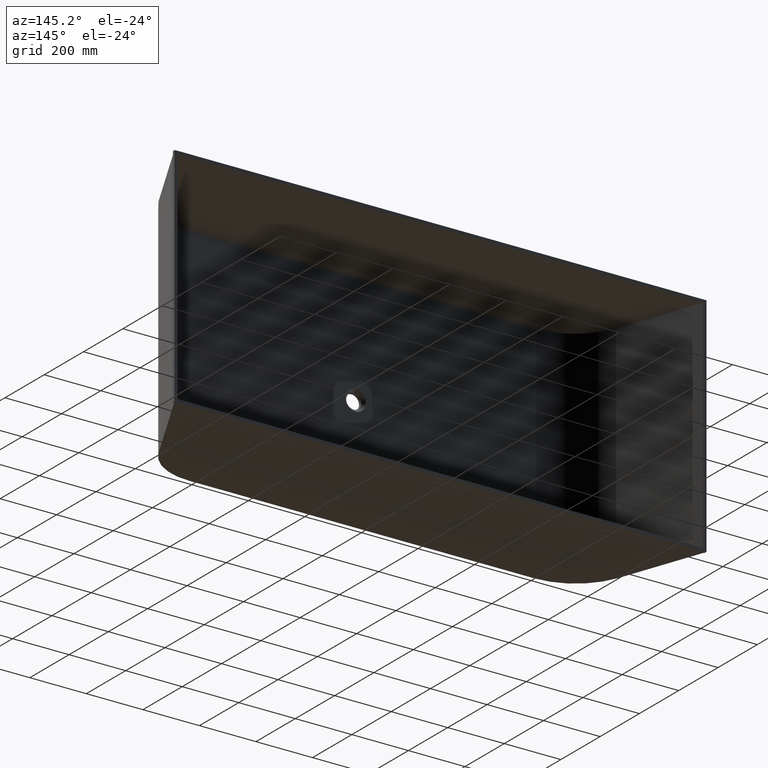
[diagram: clean part render]
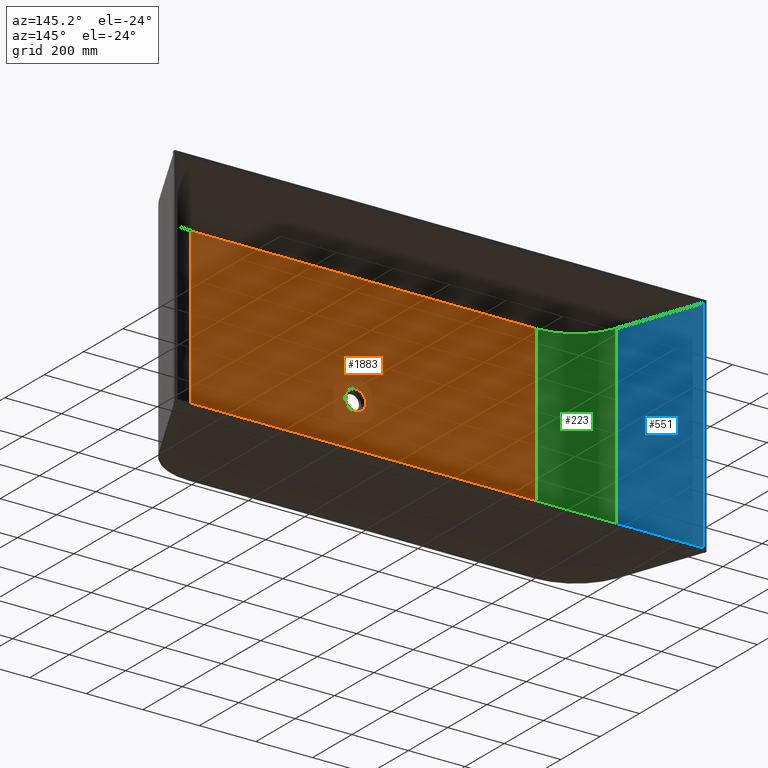
[diagram: same view with three faces highlighted in distinct colors, each labeled with its STEP entity id]
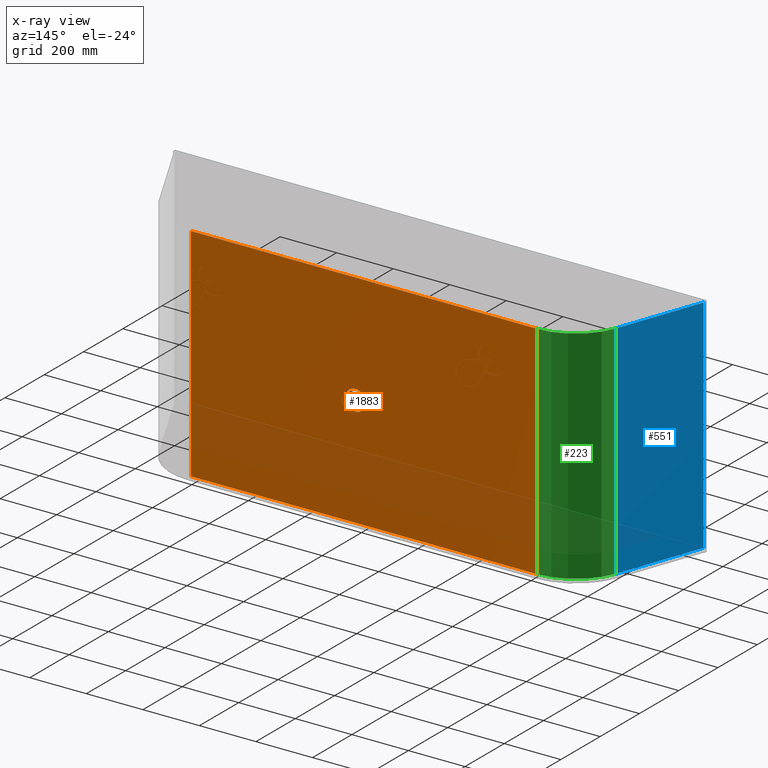
[diagram: x-ray of the same camera — body ghosted, the three highlighted faces saturated]
A machine part, auxiliary view with three faces highlighted in distinct colors.
The next image is the same camera in x-ray (body ghosted, the three faces saturated) — at least one of them is partly hidden behind the body in this view.
Their STEP definitions:

[orange] entity #1883 — the highlighted planar face has unit normal (-0, 1, 0).
#12 = VECTOR ( 'NONE', #1101, 1000.000000000000000 ) ;
#79 = DIRECTION ( 'NONE',  ( -9.086232305730578689E-17, 1.000000000000000000, 0.0000000000000000000 ) ) ;
#112 = EDGE_CURVE ( 'NONE', #615, #1633, #811, .T. ) ;
#124 = VECTOR ( 'NONE', #2161, 1000.000000000000000 ) ;
#141 = VECTOR ( 'NONE', #571, 1000.000000000000000 ) ;
#162 = CARTESIAN_POINT ( 'NONE',  ( -639.9479528049172359, -430.0000000000000568, -390.0000000000000000 ) ) ;
#197 = CIRCLE ( 'NONE', #491, 36.00000000000025580 ) ;
#214 = EDGE_CURVE ( 'NONE', #1102, #1333, #197, .T. ) ;
#244 = FACE_OUTER_BOUND ( 'NONE', #328, .T. ) ;
#285 = DIRECTION ( 'NONE',  ( -9.086232305730578689E-17, 1.000000000000000000, 0.0000000000000000000 ) ) ;
#293 = DIRECTION ( 'NONE',  ( -0.0000000000000000000, -0.0000000000000000000, -1.000000000000000000 ) ) ;
#304 = CARTESIAN_POINT ( 'NONE',  ( -639.9479528049172359, -430.0000000000000568, 390.0000000000000000 ) ) ;
#323 = CIRCLE ( 'NONE', #1554, 36.00000000000025580 ) ;
#328 = EDGE_LOOP ( 'NONE', ( #1763, #1619, #606, #472 ) ) ;
#367 = DIRECTION ( 'NONE',  ( -1.000000000000000000, 0.0000000000000000000, 0.0000000000000000000 ) ) ;
#417 = CARTESIAN_POINT ( 'NONE',  ( 3.907079891464148792E-14, -430.0000000000000000, 390.0000000000000000 ) ) ;
#472 = ORIENTED_EDGE ( 'NONE', *, *, #112, .T. ) ;
#491 = AXIS2_PLACEMENT_3D ( 'NONE', #1938, #285, #1959 ) ;
#524 = EDGE_LOOP ( 'NONE', ( #1074, #937 ) ) ;
#530 = EDGE_CURVE ( 'NONE', #1333, #1102, #323, .T. ) ;
#571 = DIRECTION ( 'NONE',  ( 1.000000000000000000, 9.086232305730578689E-17, 0.0000000000000000000 ) ) ;
#598 = VERTEX_POINT ( 'NONE', #162 ) ;
#606 = ORIENTED_EDGE ( 'NONE', *, *, #1880, .T. ) ;
#615 = VERTEX_POINT ( 'NONE', #1182 ) ;
#734 = CARTESIAN_POINT ( 'NONE',  ( 3.907079891464148792E-14, -430.0000000000000000, -390.0000000000000000 ) ) ;
#768 = DIRECTION ( 'NONE',  ( -1.000000000000000000, -9.086232305730578689E-17, 0.0000000000000000000 ) ) ;
#777 = EDGE_CURVE ( 'NONE', #598, #1633, #2082, .T. ) ;
#811 = LINE ( 'NONE', #1321, #124 ) ;
#855 = DIRECTION ( 'NONE',  ( -9.086232305730578689E-17, 1.000000000000000000, 0.0000000000000000000 ) ) ;
#930 = PLANE ( 'NONE',  #1259 ) ;
#937 = ORIENTED_EDGE ( 'NONE', *, *, #214, .F. ) ;
#1007 = VECTOR ( 'NONE', #293, 1000.000000000000000 ) ;
#1074 = ORIENTED_EDGE ( 'NONE', *, *, #530, .F. ) ;
#1101 = DIRECTION ( 'NONE',  ( 1.000000000000000000, 9.086232305730578689E-17, 0.0000000000000000000 ) ) ;
#1102 = VERTEX_POINT ( 'NONE', #1514 ) ;
#1142 = LINE ( 'NONE', #1802, #1007 ) ;
#1182 = CARTESIAN_POINT ( 'NONE',  ( 581.9259628828339146, -429.9999999999999432, 390.0000000000000000 ) ) ;
#1259 = AXIS2_PLACEMENT_3D ( 'NONE', #1600, #79, #768 ) ;
#1321 = CARTESIAN_POINT ( 'NONE',  ( 581.9259628828339146, -429.9999999999999432, 390.0000000000000000 ) ) ;
#1333 = VERTEX_POINT ( 'NONE', #1431 ) ;
#1431 = CARTESIAN_POINT ( 'NONE',  ( 3.907079891464148792E-14, -430.0000000000000000, 36.00000000000025580 ) ) ;
#1462 = VERTEX_POINT ( 'NONE', #304 ) ;
#1514 = CARTESIAN_POINT ( 'NONE',  ( 4.347952739157198481E-14, -430.0000000000000000, -36.00000000000025580 ) ) ;
#1552 = EDGE_CURVE ( 'NONE', #1462, #598, #1142, .T. ) ;
#1554 = AXIS2_PLACEMENT_3D ( 'NONE', #1688, #855, #367 ) ;
#1600 = CARTESIAN_POINT ( 'NONE',  ( 3.907079891464148792E-14, -430.0000000000000000, 390.0000000000000000 ) ) ;
#1619 = ORIENTED_EDGE ( 'NONE', *, *, #1552, .F. ) ;
#1633 = VERTEX_POINT ( 'NONE', #2018 ) ;
#1688 = CARTESIAN_POINT ( 'NONE',  ( 3.907079891464148792E-14, -430.0000000000000000, 0.0000000000000000000 ) ) ;
#1760 = FACE_BOUND ( 'NONE', #524, .T. ) ;
#1763 = ORIENTED_EDGE ( 'NONE', *, *, #777, .F. ) ;
#1802 = CARTESIAN_POINT ( 'NONE',  ( -639.9479528049172359, -430.0000000000000568, 390.0000000000000000 ) ) ;
#1880 = EDGE_CURVE ( 'NONE', #1462, #615, #1936, .T. ) ;
#1883 = ADVANCED_FACE ( 'NONE', ( #1760, #244 ), #930, .T. ) ;
#1936 = LINE ( 'NONE', #417, #12 ) ;
#1938 = CARTESIAN_POINT ( 'NONE',  ( 3.907079891464148792E-14, -430.0000000000000000, 0.0000000000000000000 ) ) ;
#1959 = DIRECTION ( 'NONE',  ( -1.000000000000000000, 0.0000000000000000000, 0.0000000000000000000 ) ) ;
#2018 = CARTESIAN_POINT ( 'NONE',  ( 581.9259628828339146, -429.9999999999999432, -390.0000000000000000 ) ) ;
#2082 = LINE ( 'NONE', #734, #141 ) ;
#2161 = DIRECTION ( 'NONE',  ( -0.0000000000000000000, -0.0000000000000000000, -1.000000000000000000 ) ) ;

[blue] entity #551 — the highlighted planar face has unit normal (0.9442, 0.3294, -0).
#85 = LINE ( 'NONE', #224, #1126 ) ;
#94 = CARTESIAN_POINT ( 'NONE',  ( -932.0000000000001137, 0.0000000000000000000, -390.0000000000000000 ) ) ;
#131 = VERTEX_POINT ( 'NONE', #1890 ) ;
#153 = LINE ( 'NONE', #833, #1543 ) ;
#224 = CARTESIAN_POINT ( 'NONE',  ( -830.8910318225648552, -289.8457087753138239, 390.0000000000000000 ) ) ;
#229 = ORIENTED_EDGE ( 'NONE', *, *, #1925, .F. ) ;
#250 = DIRECTION ( 'NONE',  ( 0.3293721563182946399, -0.9442001814457762210, 0.0000000000000000000 ) ) ;
#324 = EDGE_CURVE ( 'NONE', #1500, #131, #85, .T. ) ;
#547 = PLANE ( 'NONE',  #1835 ) ;
#551 = ADVANCED_FACE ( 'NONE', ( #886 ), #547, .T. ) ;
#591 = CARTESIAN_POINT ( 'NONE',  ( -830.8910318225648552, -289.8457087753138239, -390.0000000000000000 ) ) ;
#610 = LINE ( 'NONE', #1281, #1437 ) ;
#833 = CARTESIAN_POINT ( 'NONE',  ( -828.7879890940724863, -295.8744312636588347, 390.0000000000000000 ) ) ;
#862 = DIRECTION ( 'NONE',  ( -0.3293721563182946399, 0.9442001814457762210, 0.0000000000000000000 ) ) ;
#883 = EDGE_LOOP ( 'NONE', ( #1158, #229, #927, #1584 ) ) ;
#886 = FACE_OUTER_BOUND ( 'NONE', #883, .T. ) ;
#927 = ORIENTED_EDGE ( 'NONE', *, *, #324, .T. ) ;
#936 = VERTEX_POINT ( 'NONE', #1423 ) ;
#980 = VECTOR ( 'NONE', #1260, 1000.000000000000114 ) ;
#1060 = CARTESIAN_POINT ( 'NONE',  ( -830.8910318225648552, -289.8457087753138239, 390.0000000000000000 ) ) ;
#1126 = VECTOR ( 'NONE', #250, 1000.000000000000114 ) ;
#1158 = ORIENTED_EDGE ( 'NONE', *, *, #1869, .F. ) ;
#1164 = CARTESIAN_POINT ( 'NONE',  ( -932.0000000000001137, 0.0000000000000000000, 390.0000000000000000 ) ) ;
#1260 = DIRECTION ( 'NONE',  ( 0.3293721563182946399, -0.9442001814457762210, 0.0000000000000000000 ) ) ;
#1281 = CARTESIAN_POINT ( 'NONE',  ( -932.0000000000001137, 0.0000000000000000000, 390.0000000000000000 ) ) ;
#1423 = CARTESIAN_POINT ( 'NONE',  ( -828.7879890940724863, -295.8744312636588347, -390.0000000000000000 ) ) ;
#1437 = VECTOR ( 'NONE', #1954, 1000.000000000000000 ) ;
#1500 = VERTEX_POINT ( 'NONE', #1164 ) ;
#1505 = DIRECTION ( 'NONE',  ( -0.0000000000000000000, -0.0000000000000000000, -1.000000000000000000 ) ) ;
#1543 = VECTOR ( 'NONE', #1505, 1000.000000000000000 ) ;
#1584 = ORIENTED_EDGE ( 'NONE', *, *, #2193, .T. ) ;
#1699 = DIRECTION ( 'NONE',  ( 0.9442001814457763320, 0.3293721563182946954, -0.0000000000000000000 ) ) ;
#1835 = AXIS2_PLACEMENT_3D ( 'NONE', #1060, #1699, #862 ) ;
#1869 = EDGE_CURVE ( 'NONE', #2074, #936, #2103, .T. ) ;
#1890 = CARTESIAN_POINT ( 'NONE',  ( -828.7879890940724863, -295.8744312636588347, 390.0000000000000000 ) ) ;
#1925 = EDGE_CURVE ( 'NONE', #1500, #2074, #610, .T. ) ;
#1954 = DIRECTION ( 'NONE',  ( -0.0000000000000000000, -0.0000000000000000000, -1.000000000000000000 ) ) ;
#2074 = VERTEX_POINT ( 'NONE', #94 ) ;
#2103 = LINE ( 'NONE', #591, #980 ) ;
#2193 = EDGE_CURVE ( 'NONE', #131, #936, #153, .T. ) ;

[green] entity #223 — the highlighted cylindrical surface (partial cylindrical patch) has radius 200 mm, axis along (-0, -0, -1).
#131 = VERTEX_POINT ( 'NONE', #1890 ) ;
#134 = DIRECTION ( 'NONE',  ( 0.0000000000000000000, -0.0000000000000000000, -1.000000000000000000 ) ) ;
#148 = ORIENTED_EDGE ( 'NONE', *, *, #2033, .F. ) ;
#153 = LINE ( 'NONE', #833, #1543 ) ;
#162 = CARTESIAN_POINT ( 'NONE',  ( -639.9479528049172359, -430.0000000000000568, -390.0000000000000000 ) ) ;
#223 = ADVANCED_FACE ( 'NONE', ( #1541 ), #2061, .F. ) ;
#262 = CIRCLE ( 'NONE', #1506, 199.9999999999999432 ) ;
#293 = DIRECTION ( 'NONE',  ( -0.0000000000000000000, -0.0000000000000000000, -1.000000000000000000 ) ) ;
#304 = CARTESIAN_POINT ( 'NONE',  ( -639.9479528049172359, -430.0000000000000568, 390.0000000000000000 ) ) ;
#399 = ORIENTED_EDGE ( 'NONE', *, *, #1896, .T. ) ;
#426 = DIRECTION ( 'NONE',  ( 0.0000000000000000000, -0.0000000000000000000, -1.000000000000000000 ) ) ;
#594 = CIRCLE ( 'NONE', #1814, 199.9999999999999432 ) ;
#598 = VERTEX_POINT ( 'NONE', #162 ) ;
#694 = CARTESIAN_POINT ( 'NONE',  ( -639.9479528049172359, -230.0000000000000000, 390.0000000000000000 ) ) ;
#797 = ORIENTED_EDGE ( 'NONE', *, *, #1552, .T. ) ;
#817 = DIRECTION ( 'NONE',  ( 1.000000000000000000, -8.326672684688676025E-16, 0.0000000000000000000 ) ) ;
#833 = CARTESIAN_POINT ( 'NONE',  ( -828.7879890940724863, -295.8744312636588347, 390.0000000000000000 ) ) ;
#936 = VERTEX_POINT ( 'NONE', #1423 ) ;
#1007 = VECTOR ( 'NONE', #293, 1000.000000000000000 ) ;
#1058 = AXIS2_PLACEMENT_3D ( 'NONE', #694, #1786, #1285 ) ;
#1109 = DIRECTION ( 'NONE',  ( 1.000000000000000000, -8.326672684688676025E-16, 0.0000000000000000000 ) ) ;
#1142 = LINE ( 'NONE', #1802, #1007 ) ;
#1285 = DIRECTION ( 'NONE',  ( -1.000000000000000000, 0.0000000000000000000, 0.0000000000000000000 ) ) ;
#1423 = CARTESIAN_POINT ( 'NONE',  ( -828.7879890940724863, -295.8744312636588347, -390.0000000000000000 ) ) ;
#1462 = VERTEX_POINT ( 'NONE', #304 ) ;
#1505 = DIRECTION ( 'NONE',  ( -0.0000000000000000000, -0.0000000000000000000, -1.000000000000000000 ) ) ;
#1506 = AXIS2_PLACEMENT_3D ( 'NONE', #1650, #134, #817 ) ;
#1541 = FACE_OUTER_BOUND ( 'NONE', #2014, .T. ) ;
#1543 = VECTOR ( 'NONE', #1505, 1000.000000000000000 ) ;
#1552 = EDGE_CURVE ( 'NONE', #1462, #598, #1142, .T. ) ;
#1650 = CARTESIAN_POINT ( 'NONE',  ( -639.9479528049172359, -230.0000000000000000, 390.0000000000000000 ) ) ;
#1786 = DIRECTION ( 'NONE',  ( -0.0000000000000000000, -0.0000000000000000000, -1.000000000000000000 ) ) ;
#1802 = CARTESIAN_POINT ( 'NONE',  ( -639.9479528049172359, -430.0000000000000568, 390.0000000000000000 ) ) ;
#1814 = AXIS2_PLACEMENT_3D ( 'NONE', #1943, #426, #1109 ) ;
#1822 = ORIENTED_EDGE ( 'NONE', *, *, #2193, .F. ) ;
#1890 = CARTESIAN_POINT ( 'NONE',  ( -828.7879890940724863, -295.8744312636588347, 390.0000000000000000 ) ) ;
#1896 = EDGE_CURVE ( 'NONE', #598, #936, #594, .T. ) ;
#1943 = CARTESIAN_POINT ( 'NONE',  ( -639.9479528049172359, -230.0000000000000000, -390.0000000000000000 ) ) ;
#2014 = EDGE_LOOP ( 'NONE', ( #399, #1822, #148, #797 ) ) ;
#2033 = EDGE_CURVE ( 'NONE', #1462, #131, #262, .T. ) ;
#2061 = CYLINDRICAL_SURFACE ( 'NONE', #1058, 199.9999999999999432 ) ;
#2193 = EDGE_CURVE ( 'NONE', #131, #936, #153, .T. ) ;